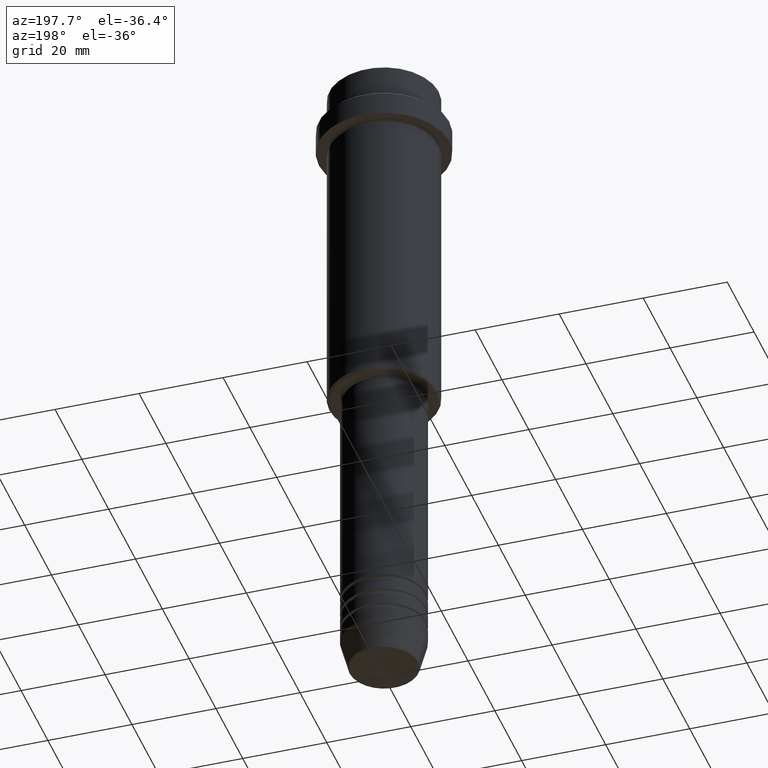
[diagram: clean part render]
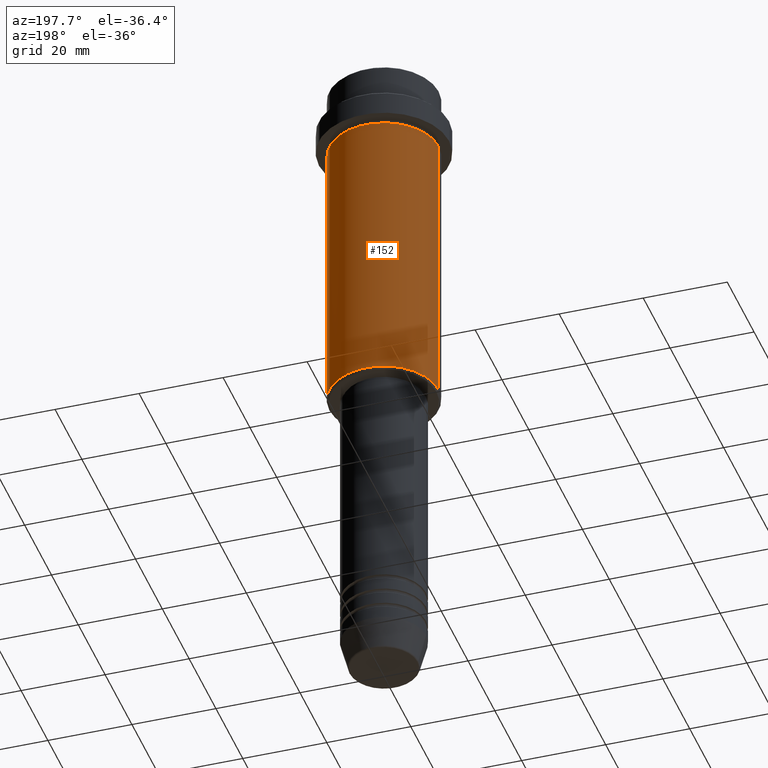
[diagram: same view with one face highlighted and labeled with its STEP entity id]
A machine part, auxiliary view. The second image highlights one B-rep face of the part: STEP entity #152.
In plain terms, the highlighted cylindrical surface (partial cylindrical patch) has radius 13 mm, axis along (-0, -0, 1).
Its self-contained STEP definition (entity closure, byte-faithful):
#40 = VECTOR ( 'NONE', #102, 1000.000000000000000 ) ;
#83 = CARTESIAN_POINT ( 'NONE',  ( 13.00000000000000000, 0.000000000000000000, -16.00000000000000000 ) ) ;
#92 = DIRECTION ( 'NONE',  ( -0.000000000000000000, -0.000000000000000000, 1.000000000000000000 ) ) ;
#102 = DIRECTION ( 'NONE',  ( -0.000000000000000000, -0.000000000000000000, 1.000000000000000000 ) ) ;
#128 = DIRECTION ( 'NONE',  ( -0.000000000000000000, -0.000000000000000000, 1.000000000000000000 ) ) ;
#152 = ADVANCED_FACE ( 'NONE', ( #1143 ), #588, .T. ) ;
#254 = VERTEX_POINT ( 'NONE', #399 ) ;
#257 = EDGE_CURVE ( 'NONE', #458, #891, #313, .T. ) ;
#313 = CIRCLE ( 'NONE', #969, 13.00000000000000000 ) ;
#349 = EDGE_LOOP ( 'NONE', ( #819, #630, #1174, #1251 ) ) ;
#399 = CARTESIAN_POINT ( 'NONE',  ( -13.00000000000000000, 1.592040838891559095E-15, -16.00000000000000000 ) ) ;
#408 = DIRECTION ( 'NONE',  ( -0.000000000000000000, -0.000000000000000000, 1.000000000000000000 ) ) ;
#434 = EDGE_CURVE ( 'NONE', #458, #1387, #1002, .T. ) ;
#458 = VERTEX_POINT ( 'NONE', #1111 ) ;
#491 = AXIS2_PLACEMENT_3D ( 'NONE', #494, #408, #520 ) ;
#494 = CARTESIAN_POINT ( 'NONE',  ( 0.000000000000000000, 0.000000000000000000, -16.00000000000000000 ) ) ;
#520 = DIRECTION ( 'NONE',  ( 1.000000000000000000, 0.000000000000000000, 0.000000000000000000 ) ) ;
#522 = CARTESIAN_POINT ( 'NONE',  ( -13.00000000000000000, 1.592040838891559095E-15, -84.49999999999998579 ) ) ;
#588 = CYLINDRICAL_SURFACE ( 'NONE', #1319, 13.00000000000000000 ) ;
#630 = ORIENTED_EDGE ( 'NONE', *, *, #1157, .T. ) ;
#790 = CARTESIAN_POINT ( 'NONE',  ( -13.00000000000000000, 1.592040838891559095E-15, 0.000000000000000000 ) ) ;
#819 = ORIENTED_EDGE ( 'NONE', *, *, #257, .T. ) ;
#891 = VERTEX_POINT ( 'NONE', #522 ) ;
#893 = CARTESIAN_POINT ( 'NONE',  ( 13.00000000000000000, 0.000000000000000000, 0.000000000000000000 ) ) ;
#946 = CIRCLE ( 'NONE', #491, 13.00000000000000000 ) ;
#969 = AXIS2_PLACEMENT_3D ( 'NONE', #1080, #92, #979 ) ;
#974 = VECTOR ( 'NONE', #128, 1000.000000000000000 ) ;
#979 = DIRECTION ( 'NONE',  ( -1.000000000000000000, 0.000000000000000000, 0.000000000000000000 ) ) ;
#1002 = LINE ( 'NONE', #893, #40 ) ;
#1054 = EDGE_CURVE ( 'NONE', #1387, #254, #946, .T. ) ;
#1080 = CARTESIAN_POINT ( 'NONE',  ( 0.000000000000000000, 0.000000000000000000, -84.49999999999998579 ) ) ;
#1111 = CARTESIAN_POINT ( 'NONE',  ( 13.00000000000000000, 0.000000000000000000, -84.49999999999998579 ) ) ;
#1143 = FACE_OUTER_BOUND ( 'NONE', #349, .T. ) ;
#1157 = EDGE_CURVE ( 'NONE', #891, #254, #1230, .T. ) ;
#1174 = ORIENTED_EDGE ( 'NONE', *, *, #1054, .F. ) ;
#1230 = LINE ( 'NONE', #790, #974 ) ;
#1242 = DIRECTION ( 'NONE',  ( -0.000000000000000000, -0.000000000000000000, 1.000000000000000000 ) ) ;
#1251 = ORIENTED_EDGE ( 'NONE', *, *, #434, .F. ) ;
#1255 = DIRECTION ( 'NONE',  ( 1.000000000000000000, 0.000000000000000000, 0.000000000000000000 ) ) ;
#1319 = AXIS2_PLACEMENT_3D ( 'NONE', #1373, #1242, #1255 ) ;
#1373 = CARTESIAN_POINT ( 'NONE',  ( 0.000000000000000000, 0.000000000000000000, 0.000000000000000000 ) ) ;
#1387 = VERTEX_POINT ( 'NONE', #83 ) ;